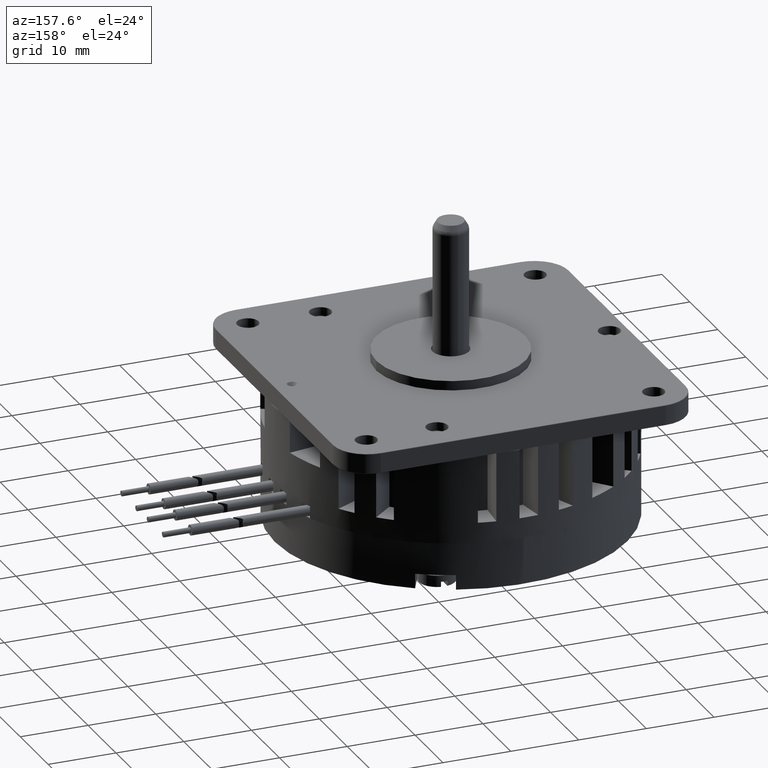
[diagram: clean part render]
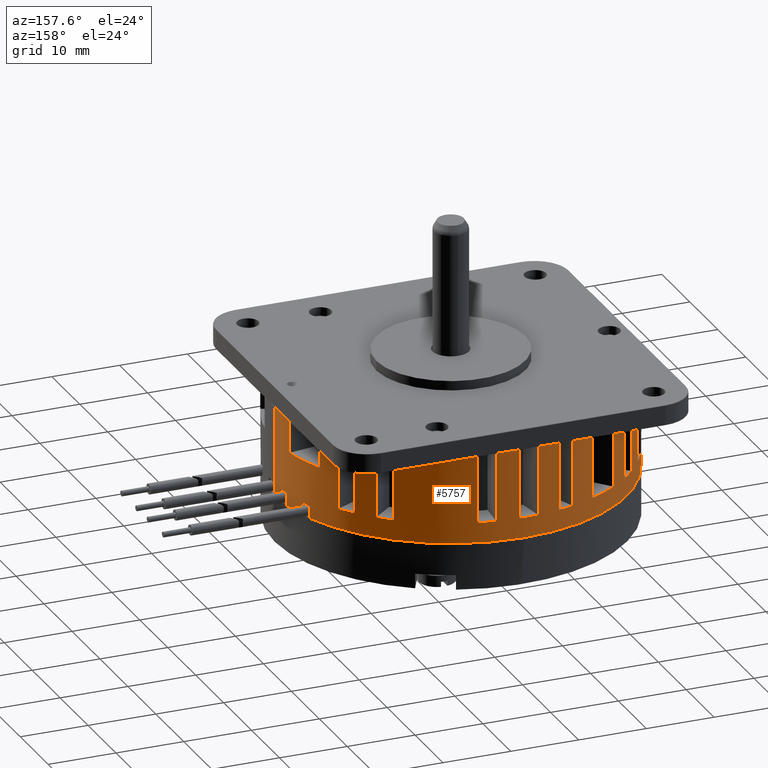
[diagram: same view with one face highlighted and labeled with its STEP entity id]
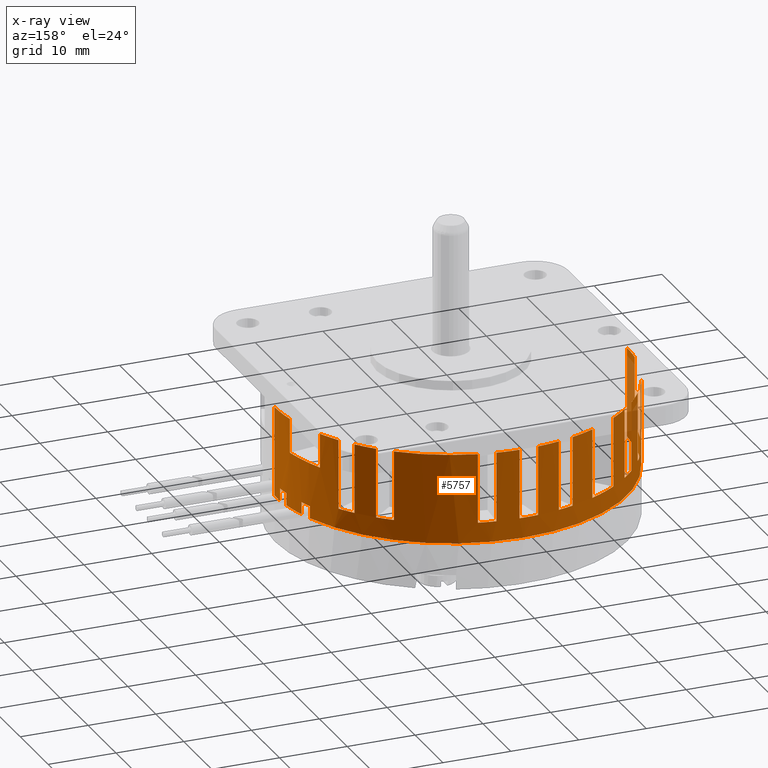
[diagram: x-ray of the same camera — body ghosted, the highlighted face saturated]
A machine part, auxiliary view. The second image highlights one B-rep face of the part: STEP entity #5757.
The next image is the same camera in x-ray: the body ghosted, the highlighted face saturated — about 3% of this face is hidden behind the body in this view.
In plain terms, the highlighted cylindrical surface (partial cylindrical patch) has radius 26 mm, axis along (0, 0, 1).
Its self-contained STEP definition (entity closure, byte-faithful):
#2304=CARTESIAN_POINT('',(5.E-2,4.405E0,0.E0));
#2305=DIRECTION('',(0.E0,-1.E0,0.E0));
#2306=DIRECTION('',(-1.E0,0.E0,0.E0));
#2307=AXIS2_PLACEMENT_3D('',#2304,#2305,#2306);
#2322=CARTESIAN_POINT('',(5.E-2,4.405E0,0.E0));
#2323=DIRECTION('',(0.E0,-1.E0,0.E0));
#2324=DIRECTION('',(-9.356814816891E-1,0.E0,-3.528458088515E-1));
#2325=AXIS2_PLACEMENT_3D('',#2322,#2323,#2324);
#2340=CARTESIAN_POINT('',(5.E-2,4.405E0,0.E0));
#2341=DIRECTION('',(0.E0,-1.E0,0.E0));
#2342=DIRECTION('',(-8.321334565652E-1,0.E0,-5.545754326193E-1));
#2343=AXIS2_PLACEMENT_3D('',#2340,#2341,#2342);
#2358=CARTESIAN_POINT('',(5.E-2,4.405E0,0.E0));
#2359=DIRECTION('',(0.E0,-1.E0,0.E0));
#2360=DIRECTION('',(-6.865613608901E-1,0.E0,-7.270718655901E-1));
#2361=AXIS2_PLACEMENT_3D('',#2358,#2359,#2360);
#2376=CARTESIAN_POINT('',(5.E-2,4.405E0,0.E0));
#2377=DIRECTION('',(0.E0,-1.E0,0.E0));
#2378=DIRECTION('',(-4.320625068323E-1,0.E0,-9.018436617229E-1));
#2379=AXIS2_PLACEMENT_3D('',#2376,#2377,#2378);
#2394=CARTESIAN_POINT('',(5.E-2,4.405E0,0.E0));
#2395=DIRECTION('',(0.E0,-1.E0,0.E0));
#2396=DIRECTION('',(-2.106171863816E-1,0.E0,-9.775686169271E-1));
#2397=AXIS2_PLACEMENT_3D('',#2394,#2395,#2396);
#2412=CARTESIAN_POINT('',(5.E-2,4.405E0,0.E0));
#2413=DIRECTION('',(0.E0,-1.E0,0.E0));
#2414=DIRECTION('',(2.236412153177E-2,0.E0,-9.997498917570E-1));
#2415=AXIS2_PLACEMENT_3D('',#2412,#2413,#2414);
#2430=CARTESIAN_POINT('',(5.E-2,4.405E0,0.E0));
#2431=DIRECTION('',(0.E0,-1.E0,0.E0));
#2432=DIRECTION('',(2.460091064024E-1,0.E0,-9.692675170288E-1));
#2433=AXIS2_PLACEMENT_3D('',#2430,#2431,#2432);
#2448=CARTESIAN_POINT('',(5.E-2,4.405E0,0.E0));
#2449=DIRECTION('',(0.E0,-1.E0,0.E0));
#2450=DIRECTION('',(7.125341504196E-1,0.E0,-7.016374309327E-1));
#2451=AXIS2_PLACEMENT_3D('',#2448,#2449,#2450);
#2466=CARTESIAN_POINT('',(5.E-2,4.405E0,0.E0));
#2467=DIRECTION('',(0.E0,-1.E0,0.E0));
#2468=DIRECTION('',(8.522886645596E-1,0.E0,-5.230717276466E-1));
#2469=AXIS2_PLACEMENT_3D('',#2466,#2467,#2468);
#2484=CARTESIAN_POINT('',(5.E-2,4.405E0,0.E0));
#2485=DIRECTION('',(0.E0,-1.E0,0.E0));
#2486=DIRECTION('',(9.848077530122E-1,0.E0,-1.736481776669E-1));
#2487=AXIS2_PLACEMENT_3D('',#2484,#2485,#2486);
#2538=DIRECTION('',(0.E0,1.E0,0.E0));
#2539=VECTOR('',#2538,1.323E1);
#2540=CARTESIAN_POINT('',(-2.595E1,-8.825E0,0.E0));
#2541=LINE('',#2540,#2539);
#2680=CARTESIAN_POINT('',(5.E-2,-8.825E0,0.E0));
#2681=DIRECTION('',(0.E0,1.E0,0.E0));
#2682=DIRECTION('',(9.395595436074E-1,0.E0,-3.423855487842E-1));
#2683=AXIS2_PLACEMENT_3D('',#2680,#2681,#2682);
#2757=CARTESIAN_POINT('',(5.E-2,-8.825E0,0.E0));
#2758=DIRECTION('',(0.E0,1.E0,0.E0));
#2759=DIRECTION('',(1.E0,0.E0,1.427051408794E-14));
#2760=AXIS2_PLACEMENT_3D('',#2757,#2758,#2759);
#2793=CARTESIAN_POINT('',(5.E-2,-8.825E0,0.E0));
#2794=DIRECTION('',(0.E0,1.E0,0.E0));
#2795=DIRECTION('',(9.902759381933E-1,0.E0,-1.391170954102E-1));
#2796=AXIS2_PLACEMENT_3D('',#2793,#2794,#2795);
#2940=DIRECTION('',(0.E0,-1.E0,0.E0));
#2941=VECTOR('',#2940,1.8E0);
#2942=CARTESIAN_POINT('',(2.598573328714E1,-7.025E0,-1.826947962748E0));
#2943=LINE('',#2942,#2941);
#2944=DIRECTION('',(0.E0,1.E0,0.E0));
#2945=VECTOR('',#2944,1.323E1);
#2946=CARTESIAN_POINT('',(2.605E1,-8.825E0,1.258005098807E-13));
#2947=LINE('',#2946,#2945);
#2948=DIRECTION('',(0.E0,-1.E0,0.E0));
#2949=VECTOR('',#2948,5.03E0);
#2950=CARTESIAN_POINT('',(2.565500157832E1,4.405E0,-4.514852619340E0));
#2951=LINE('',#2950,#2949);
#2952=DIRECTION('',(0.E0,1.E0,0.E0));
#2953=VECTOR('',#2952,5.03E0);
#2954=CARTESIAN_POINT('',(2.375367366561E1,-6.25E-1,-1.068343833952E1));
#2955=LINE('',#2954,#2953);
#2956=DIRECTION('',(0.E0,-1.E0,0.E0));
#2957=VECTOR('',#2956,1.023E1);
#2958=CARTESIAN_POINT('',(2.220950527855E1,4.405E0,-1.359986491881E1));
#2959=LINE('',#2958,#2957);
#2960=DIRECTION('',(0.E0,1.E0,0.E0));
#2961=VECTOR('',#2960,1.023E1);
#2962=CARTESIAN_POINT('',(2.073740314522E1,-5.825E0,-1.574901111522E1));
#2963=LINE('',#2962,#2961);
#2964=DIRECTION('',(0.E0,-1.E0,0.E0));
#2965=VECTOR('',#2964,1.023E1);
#2966=CARTESIAN_POINT('',(1.857588791091E1,4.405E0,-1.824257320425E1));
#2967=LINE('',#2966,#2965);
#2968=DIRECTION('',(0.E0,1.E0,0.E0));
#2969=VECTOR('',#2968,1.023E1);
#2970=CARTESIAN_POINT('',(1.667838758617E1,-5.825E0,-1.998741419704E1));
#2971=LINE('',#2970,#2969);
#2972=DIRECTION('',(0.E0,-1.E0,0.E0));
#2973=VECTOR('',#2972,1.023E1);
#2974=CARTESIAN_POINT('',(6.446236766462E0,4.405E0,-2.520095544275E1));
#2975=LINE('',#2974,#2973);
#2976=DIRECTION('',(0.E0,1.E0,0.E0));
#2977=VECTOR('',#2976,1.023E1);
#2978=CARTESIAN_POINT('',(3.919308043714E0,-5.825E0,-2.571047364913E1));
#2979=LINE('',#2978,#2977);
#2980=DIRECTION('',(0.E0,-1.E0,0.E0));
#2981=VECTOR('',#2980,1.023E1);
#2982=CARTESIAN_POINT('',(6.314671598260E-1,4.405E0,-2.599349718568E1));
#2983=LINE('',#2982,#2981);
#2984=DIRECTION('',(0.E0,1.E0,0.E0));
#2985=VECTOR('',#2984,1.023E1);
#2986=CARTESIAN_POINT('',(-2.162464959882E0,-5.825E0,-2.590569433158E1));
#2987=LINE('',#2986,#2985);
#2988=DIRECTION('',(0.E0,-1.E0,0.E0));
#2989=VECTOR('',#2988,1.023E1);
#2990=CARTESIAN_POINT('',(-5.426046845922E0,4.405E0,-2.541678404010E1));
#2991=LINE('',#2990,#2989);
#2992=DIRECTION('',(0.E0,1.E0,0.E0));
#2993=VECTOR('',#2992,1.023E1);
#2994=CARTESIAN_POINT('',(-7.705810542926E0,-5.825E0,-2.481627294382E1));
#2995=LINE('',#2994,#2993);
#2996=DIRECTION('',(0.E0,-1.E0,0.E0));
#2997=VECTOR('',#2996,1.023E1);
#2998=CARTESIAN_POINT('',(-1.118362517764E1,4.405E0,-2.344793520480E1));
#2999=LINE('',#2998,#2997);
#3000=DIRECTION('',(0.E0,1.E0,0.E0));
#3001=VECTOR('',#3000,1.023E1);
#3002=CARTESIAN_POINT('',(-1.526231281386E1,-5.825E0,-2.101268845937E1));
#3003=LINE('',#3002,#3001);
#3004=DIRECTION('',(0.E0,-1.E0,0.E0));
#3005=VECTOR('',#3004,1.023E1);
#3006=CARTESIAN_POINT('',(-1.780059538314E1,4.405E0,-1.890386850534E1));
#3007=LINE('',#3006,#3005);
#3008=DIRECTION('',(0.E0,1.E0,0.E0));
#3009=VECTOR('',#3008,1.023E1);
#3010=CARTESIAN_POINT('',(-1.958479195200E1,-5.825E0,-1.704332552648E1));
#3011=LINE('',#3010,#3009);
#3012=DIRECTION('',(0.E0,-1.E0,0.E0));
#3013=VECTOR('',#3012,1.023E1);
#3014=CARTESIAN_POINT('',(-2.158546987069E1,4.405E0,-1.441896124810E1));
#3015=LINE('',#3014,#3013);
#3016=DIRECTION('',(0.E0,1.E0,0.E0));
#3017=VECTOR('',#3016,1.023E1);
#3018=CARTESIAN_POINT('',(-2.291972114052E1,-5.825E0,-1.218162184304E1));
#3019=LINE('',#3018,#3017);
#3020=DIRECTION('',(0.E0,-1.E0,0.E0));
#3021=VECTOR('',#3020,1.023E1);
#3022=CARTESIAN_POINT('',(-2.427771852392E1,4.405E0,-9.173991030140E0));
#3023=LINE('',#3022,#3021);
#3024=DIRECTION('',(0.E0,1.E0,0.E0));
#3025=VECTOR('',#3024,1.023E1);
#3026=CARTESIAN_POINT('',(-2.574607528288E1,-5.825E0,-3.25E0));
#3027=LINE('',#3026,#3025);
#3028=DIRECTION('',(0.E0,1.E0,0.E0));
#3029=VECTOR('',#3028,1.8E0);
#3030=CARTESIAN_POINT('',(2.447854813379E1,-8.825E0,-8.902024268388E0));
#3031=LINE('',#3030,#3029);
#3032=DIRECTION('',(0.E0,-1.E0,0.E0));
#3033=VECTOR('',#3032,1.8E0);
#3034=CARTESIAN_POINT('',(2.503593099460E1,-7.025E0,-7.190497363405E0));
#3035=LINE('',#3034,#3033);
#3036=DIRECTION('',(0.E0,1.E0,0.E0));
#3037=VECTOR('',#3036,1.8E0);
#3038=CARTESIAN_POINT('',(2.579717439303E1,-8.825E0,-3.617044480664E0));
#3039=LINE('',#3038,#3037);
#3040=CARTESIAN_POINT('',(5.E-2,-7.025E0,0.E0));
#3041=DIRECTION('',(0.E0,1.E0,0.E0));
#3042=DIRECTION('',(9.975282033514E-1,0.E0,-7.026722933644E-2));
#3043=AXIS2_PLACEMENT_3D('',#3040,#3041,#3042);
#3097=CARTESIAN_POINT('',(5.E-2,-6.25E-1,0.E0));
#3098=DIRECTION('',(0.E0,-1.E0,0.E0));
#3099=DIRECTION('',(9.116797563696E-1,0.E0,-4.109014745969E-1));
#3100=AXIS2_PLACEMENT_3D('',#3097,#3098,#3099);
#3123=CARTESIAN_POINT('',(5.E-2,-5.825E0,0.E0));
#3124=DIRECTION('',(0.E0,-1.E0,0.E0));
#3125=DIRECTION('',(7.956693517391E-1,0.E0,-6.057311967392E-1));
#3126=AXIS2_PLACEMENT_3D('',#3123,#3124,#3125);
#3149=CARTESIAN_POINT('',(5.E-2,-5.825E0,0.E0));
#3150=DIRECTION('',(0.E0,-1.E0,0.E0));
#3151=DIRECTION('',(6.395533686988E-1,0.E0,-7.687466998862E-1));
#3152=AXIS2_PLACEMENT_3D('',#3149,#3150,#3151);
#3175=CARTESIAN_POINT('',(5.E-2,-5.825E0,0.E0));
#3176=DIRECTION('',(0.E0,-1.E0,0.E0));
#3177=DIRECTION('',(1.488195401428E-1,0.E0,-9.888643711206E-1));
#3178=AXIS2_PLACEMENT_3D('',#3175,#3176,#3177);
#3201=CARTESIAN_POINT('',(5.E-2,-5.825E0,0.E0));
#3202=DIRECTION('',(0.E0,-1.E0,0.E0));
#3203=DIRECTION('',(-8.509480614929E-2,0.E0,-9.963728589070E-1));
#3204=AXIS2_PLACEMENT_3D('',#3201,#3202,#3203);
#3227=CARTESIAN_POINT('',(5.E-2,-5.825E0,0.E0));
#3228=DIRECTION('',(0.E0,-1.E0,0.E0));
#3229=DIRECTION('',(-2.983004054971E-1,0.E0,-9.544720363008E-1));
#3230=AXIS2_PLACEMENT_3D('',#3227,#3228,#3229);
#3253=CARTESIAN_POINT('',(5.E-2,-5.825E0,0.E0));
#3254=DIRECTION('',(0.E0,-1.E0,0.E0));
#3255=DIRECTION('',(-5.889351082256E-1,0.E0,-8.081803253602E-1));
#3256=AXIS2_PLACEMENT_3D('',#3253,#3254,#3255);
#3279=CARTESIAN_POINT('',(5.E-2,-5.825E0,0.E0));
#3280=DIRECTION('',(0.E0,-1.E0,0.E0));
#3281=DIRECTION('',(-7.551843058460E-1,0.E0,-6.555125202495E-1));
#3282=AXIS2_PLACEMENT_3D('',#3279,#3280,#3281);
#3305=CARTESIAN_POINT('',(5.E-2,-5.825E0,0.E0));
#3306=DIRECTION('',(0.E0,-1.E0,0.E0));
#3307=DIRECTION('',(-8.834508130969E-1,0.E0,-4.685239170399E-1));
#3308=AXIS2_PLACEMENT_3D('',#3305,#3306,#3307);
#3335=CARTESIAN_POINT('',(5.E-2,-5.825E0,0.E0));
#3336=DIRECTION('',(0.E0,-1.E0,0.E0));
#3337=DIRECTION('',(-9.921567416492E-1,0.E0,-1.25E-1));
#3338=AXIS2_PLACEMENT_3D('',#3335,#3336,#3337);
#3400=CARTESIAN_POINT('',(5.E-2,-7.025E0,0.E0));
#3401=DIRECTION('',(0.E0,1.E0,0.E0));
#3402=DIRECTION('',(9.609973459461E-1,0.E0,-2.765575909002E-1));
#3403=AXIS2_PLACEMENT_3D('',#3400,#3401,#3402);
#4430=CARTESIAN_POINT('',(-2.595E1,4.405E0,0.E0));
#4431=VERTEX_POINT('',#4430);
#4432=CARTESIAN_POINT('',(-2.574607528288E1,4.405E0,-3.25E0));
#4433=VERTEX_POINT('',#4432);
#4438=CARTESIAN_POINT('',(-2.427771852392E1,4.405E0,-9.173991030140E0));
#4439=VERTEX_POINT('',#4438);
#4440=CARTESIAN_POINT('',(-2.291972114052E1,4.405E0,-1.218162184304E1));
#4441=VERTEX_POINT('',#4440);
#4446=CARTESIAN_POINT('',(-2.158546987069E1,4.405E0,-1.441896124810E1));
#4447=VERTEX_POINT('',#4446);
#4448=CARTESIAN_POINT('',(-1.958479195200E1,4.405E0,-1.704332552649E1));
#4449=VERTEX_POINT('',#4448);
#4454=CARTESIAN_POINT('',(-1.780059538314E1,4.405E0,-1.890386850534E1));
#4455=VERTEX_POINT('',#4454);
#4456=CARTESIAN_POINT('',(-1.526231281387E1,4.405E0,-2.101268845936E1));
#4457=VERTEX_POINT('',#4456);
#4462=CARTESIAN_POINT('',(-1.118362517764E1,4.405E0,-2.344793520480E1));
#4463=VERTEX_POINT('',#4462);
#4464=CARTESIAN_POINT('',(-7.705810542926E0,4.405E0,-2.481627294382E1));
#4465=VERTEX_POINT('',#4464);
#4470=CARTESIAN_POINT('',(-5.426046845922E0,4.405E0,-2.541678404010E1));
#4471=VERTEX_POINT('',#4470);
#4472=CARTESIAN_POINT('',(-2.162464959882E0,4.405E0,-2.590569433158E1));
#4473=VERTEX_POINT('',#4472);
#4478=CARTESIAN_POINT('',(6.314671598260E-1,4.405E0,-2.599349718568E1));
#4479=VERTEX_POINT('',#4478);
#4480=CARTESIAN_POINT('',(3.919308043714E0,4.405E0,-2.571047364913E1));
#4481=VERTEX_POINT('',#4480);
#4486=CARTESIAN_POINT('',(6.446236766462E0,4.405E0,-2.520095544275E1));
#4487=VERTEX_POINT('',#4486);
#4488=CARTESIAN_POINT('',(1.667838758617E1,4.405E0,-1.998741419704E1));
#4489=VERTEX_POINT('',#4488);
#4494=CARTESIAN_POINT('',(1.857588791091E1,4.405E0,-1.824257320425E1));
#4495=VERTEX_POINT('',#4494);
#4496=CARTESIAN_POINT('',(2.073740314522E1,4.405E0,-1.574901111522E1));
#4497=VERTEX_POINT('',#4496);
#4502=CARTESIAN_POINT('',(2.220950527855E1,4.405E0,-1.359986491881E1));
#4503=VERTEX_POINT('',#4502);
#4504=CARTESIAN_POINT('',(2.375367366561E1,4.405E0,-1.068343833952E1));
#4505=VERTEX_POINT('',#4504);
#4510=CARTESIAN_POINT('',(2.565500157832E1,4.405E0,-4.514852619340E0));
#4511=VERTEX_POINT('',#4510);
#4512=CARTESIAN_POINT('',(2.605E1,4.405E0,0.E0));
#4513=VERTEX_POINT('',#4512);
#4536=CARTESIAN_POINT('',(-2.595E1,-8.825E0,0.E0));
#4537=VERTEX_POINT('',#4536);
#4576=CARTESIAN_POINT('',(2.605E1,-8.825E0,1.258005098807E-13));
#4577=VERTEX_POINT('',#4576);
#4594=CARTESIAN_POINT('',(2.598573328714E1,-7.025E0,-1.826947962747E0));
#4595=CARTESIAN_POINT('',(2.579717439303E1,-7.025E0,-3.617044480664E0));
#4596=VERTEX_POINT('',#4594);
#4597=VERTEX_POINT('',#4595);
#4604=CARTESIAN_POINT('',(2.503593099460E1,-7.025E0,-7.190497363405E0));
#4605=CARTESIAN_POINT('',(2.447854813379E1,-7.025E0,-8.902024268388E0));
#4606=VERTEX_POINT('',#4604);
#4607=VERTEX_POINT('',#4605);
#4632=CARTESIAN_POINT('',(2.447854813379E1,-8.825E0,-8.902024268388E0));
#4633=VERTEX_POINT('',#4632);
#4678=CARTESIAN_POINT('',(2.598573328714E1,-8.825E0,-1.826947962747E0));
#4679=VERTEX_POINT('',#4678);
#4688=CARTESIAN_POINT('',(2.579717439303E1,-8.825E0,-3.617044480664E0));
#4689=VERTEX_POINT('',#4688);
#4690=CARTESIAN_POINT('',(2.503593099460E1,-8.825E0,-7.190497363405E0));
#4691=VERTEX_POINT('',#4690);
#4856=CARTESIAN_POINT('',(2.565500157832E1,-6.25E-1,-4.514852619340E0));
#4857=VERTEX_POINT('',#4856);
#4858=CARTESIAN_POINT('',(2.375367366561E1,-6.25E-1,-1.068343833952E1));
#4859=VERTEX_POINT('',#4858);
#4860=CARTESIAN_POINT('',(2.220950527855E1,-5.825E0,-1.359986491881E1));
#4861=VERTEX_POINT('',#4860);
#4862=CARTESIAN_POINT('',(2.073740314522E1,-5.825E0,-1.574901111522E1));
#4863=VERTEX_POINT('',#4862);
#4864=CARTESIAN_POINT('',(1.857588791091E1,-5.825E0,-1.824257320425E1));
#4865=VERTEX_POINT('',#4864);
#4866=CARTESIAN_POINT('',(1.667838758617E1,-5.825E0,-1.998741419704E1));
#4867=VERTEX_POINT('',#4866);
#4868=CARTESIAN_POINT('',(6.446236766462E0,-5.825E0,-2.520095544275E1));
#4869=VERTEX_POINT('',#4868);
#4870=CARTESIAN_POINT('',(3.919308043714E0,-5.825E0,-2.571047364913E1));
#4871=VERTEX_POINT('',#4870);
#4872=CARTESIAN_POINT('',(6.314671598260E-1,-5.825E0,-2.599349718568E1));
#4873=VERTEX_POINT('',#4872);
#4874=CARTESIAN_POINT('',(-2.162464959882E0,-5.825E0,-2.590569433158E1));
#4875=VERTEX_POINT('',#4874);
#4876=CARTESIAN_POINT('',(-5.426046845922E0,-5.825E0,-2.541678404010E1));
#4877=VERTEX_POINT('',#4876);
#4878=CARTESIAN_POINT('',(-7.705810542926E0,-5.825E0,-2.481627294382E1));
#4879=VERTEX_POINT('',#4878);
#4880=CARTESIAN_POINT('',(-1.118362517764E1,-5.825E0,-2.344793520480E1));
#4881=VERTEX_POINT('',#4880);
#4882=CARTESIAN_POINT('',(-1.526231281387E1,-5.825E0,-2.101268845936E1));
#4883=VERTEX_POINT('',#4882);
#4884=CARTESIAN_POINT('',(-1.780059538314E1,-5.825E0,-1.890386850534E1));
#4885=VERTEX_POINT('',#4884);
#4886=CARTESIAN_POINT('',(-1.958479195200E1,-5.825E0,-1.704332552649E1));
#4887=VERTEX_POINT('',#4886);
#4888=CARTESIAN_POINT('',(-2.158546987069E1,-5.825E0,-1.441896124810E1));
#4889=VERTEX_POINT('',#4888);
#4890=CARTESIAN_POINT('',(-2.291972114052E1,-5.825E0,-1.218162184304E1));
#4891=VERTEX_POINT('',#4890);
#4892=CARTESIAN_POINT('',(-2.427771852392E1,-5.825E0,-9.173991030140E0));
#4893=VERTEX_POINT('',#4892);
#4894=CARTESIAN_POINT('',(-2.574607528288E1,-5.825E0,-3.25E0));
#4895=VERTEX_POINT('',#4894);
#5663=CARTESIAN_POINT('',(5.E-2,-9.7075E0,0.E0));
#5664=DIRECTION('',(0.E0,1.E0,0.E0));
#5665=DIRECTION('',(1.E0,0.E0,0.E0));
#5666=AXIS2_PLACEMENT_3D('',#5663,#5664,#5665);
#5667=CYLINDRICAL_SURFACE('',#5666,2.6E1);
#5669=ORIENTED_EDGE('',*,*,#5668,.F.);
#5670=ORIENTED_EDGE('',*,*,#5655,.T.);
#5671=ORIENTED_EDGE('',*,*,#5487,.F.);
#5672=ORIENTED_EDGE('',*,*,#5394,.T.);
#5673=ORIENTED_EDGE('',*,*,#5267,.F.);
#5675=ORIENTED_EDGE('',*,*,#5674,.T.);
#5677=ORIENTED_EDGE('',*,*,#5676,.F.);
#5679=ORIENTED_EDGE('',*,*,#5678,.T.);
#5680=ORIENTED_EDGE('',*,*,#5259,.F.);
#5682=ORIENTED_EDGE('',*,*,#5681,.T.);
#5684=ORIENTED_EDGE('',*,*,#5683,.F.);
#5686=ORIENTED_EDGE('',*,*,#5685,.T.);
#5687=ORIENTED_EDGE('',*,*,#5251,.F.);
#5689=ORIENTED_EDGE('',*,*,#5688,.T.);
#5691=ORIENTED_EDGE('',*,*,#5690,.F.);
#5693=ORIENTED_EDGE('',*,*,#5692,.T.);
#5694=ORIENTED_EDGE('',*,*,#5243,.F.);
#5696=ORIENTED_EDGE('',*,*,#5695,.T.);
#5698=ORIENTED_EDGE('',*,*,#5697,.F.);
#5700=ORIENTED_EDGE('',*,*,#5699,.T.);
#5701=ORIENTED_EDGE('',*,*,#5235,.F.);
#5703=ORIENTED_EDGE('',*,*,#5702,.T.);
#5705=ORIENTED_EDGE('',*,*,#5704,.F.);
#5707=ORIENTED_EDGE('',*,*,#5706,.T.);
#5708=ORIENTED_EDGE('',*,*,#5227,.F.);
#5710=ORIENTED_EDGE('',*,*,#5709,.T.);
#5712=ORIENTED_EDGE('',*,*,#5711,.F.);
#5714=ORIENTED_EDGE('',*,*,#5713,.T.);
#5715=ORIENTED_EDGE('',*,*,#5219,.F.);
#5717=ORIENTED_EDGE('',*,*,#5716,.T.);
#5719=ORIENTED_EDGE('',*,*,#5718,.F.);
#5721=ORIENTED_EDGE('',*,*,#5720,.T.);
#5722=ORIENTED_EDGE('',*,*,#5211,.F.);
#5724=ORIENTED_EDGE('',*,*,#5723,.T.);
#5726=ORIENTED_EDGE('',*,*,#5725,.F.);
#5728=ORIENTED_EDGE('',*,*,#5727,.T.);
#5729=ORIENTED_EDGE('',*,*,#5203,.F.);
#5731=ORIENTED_EDGE('',*,*,#5730,.T.);
#5733=ORIENTED_EDGE('',*,*,#5732,.F.);
#5735=ORIENTED_EDGE('',*,*,#5734,.T.);
#5736=ORIENTED_EDGE('',*,*,#5195,.F.);
#5738=ORIENTED_EDGE('',*,*,#5737,.T.);
#5740=ORIENTED_EDGE('',*,*,#5739,.F.);
#5742=ORIENTED_EDGE('',*,*,#5741,.T.);
#5743=ORIENTED_EDGE('',*,*,#5187,.F.);
#5744=ORIENTED_EDGE('',*,*,#5322,.F.);
#5745=ORIENTED_EDGE('',*,*,#5455,.F.);
#5747=ORIENTED_EDGE('',*,*,#5746,.T.);
#5749=ORIENTED_EDGE('',*,*,#5748,.F.);
#5751=ORIENTED_EDGE('',*,*,#5750,.T.);
#5752=ORIENTED_EDGE('',*,*,#5503,.F.);
#5754=ORIENTED_EDGE('',*,*,#5753,.T.);
#5755=EDGE_LOOP('',(#5669,#5670,#5671,#5672,#5673,#5675,#5677,#5679,#5680,#5682,
#5684,#5686,#5687,#5689,#5691,#5693,#5694,#5696,#5698,#5700,#5701,#5703,#5705,
#5707,#5708,#5710,#5712,#5714,#5715,#5717,#5719,#5721,#5722,#5724,#5726,#5728,
#5729,#5731,#5733,#5735,#5736,#5738,#5740,#5742,#5743,#5744,#5745,#5747,#5749,
#5751,#5752,#5754));
#5756=FACE_OUTER_BOUND('',#5755,.F.);
#5757=ADVANCED_FACE('',(#5756),#5667,.T.);
#2308=CIRCLE('',#2307,2.6E1);
#2326=CIRCLE('',#2325,2.6E1);
#2344=CIRCLE('',#2343,2.6E1);
#2362=CIRCLE('',#2361,2.6E1);
#2380=CIRCLE('',#2379,2.6E1);
#2398=CIRCLE('',#2397,2.6E1);
#2416=CIRCLE('',#2415,2.6E1);
#2434=CIRCLE('',#2433,2.6E1);
#2452=CIRCLE('',#2451,2.6E1);
#2470=CIRCLE('',#2469,2.6E1);
#2488=CIRCLE('',#2487,2.6E1);
#2684=CIRCLE('',#2683,2.6E1);
#2761=CIRCLE('',#2760,2.6E1);
#2797=CIRCLE('',#2796,2.6E1);
#3044=CIRCLE('',#3043,2.6E1);
#3101=CIRCLE('',#3100,2.6E1);
#3127=CIRCLE('',#3126,2.6E1);
#3153=CIRCLE('',#3152,2.6E1);
#3179=CIRCLE('',#3178,2.6E1);
#3205=CIRCLE('',#3204,2.6E1);
#3231=CIRCLE('',#3230,2.6E1);
#3257=CIRCLE('',#3256,2.6E1);
#3283=CIRCLE('',#3282,2.6E1);
#3309=CIRCLE('',#3308,2.6E1);
#3339=CIRCLE('',#3338,2.6E1);
#3404=CIRCLE('',#3403,2.6E1);
#5187=EDGE_CURVE('',#4431,#4433,#2308,.T.);
#5195=EDGE_CURVE('',#4439,#4441,#2326,.T.);
#5203=EDGE_CURVE('',#4447,#4449,#2344,.T.);
#5211=EDGE_CURVE('',#4455,#4457,#2362,.T.);
#5219=EDGE_CURVE('',#4463,#4465,#2380,.T.);
#5227=EDGE_CURVE('',#4471,#4473,#2398,.T.);
#5235=EDGE_CURVE('',#4479,#4481,#2416,.T.);
#5243=EDGE_CURVE('',#4487,#4489,#2434,.T.);
#5251=EDGE_CURVE('',#4495,#4497,#2452,.T.);
#5259=EDGE_CURVE('',#4503,#4505,#2470,.T.);
#5267=EDGE_CURVE('',#4511,#4513,#2488,.T.);
#5322=EDGE_CURVE('',#4537,#4431,#2541,.T.);
#5394=EDGE_CURVE('',#4577,#4513,#2947,.T.);
#5455=EDGE_CURVE('',#4633,#4537,#2684,.T.);
#5487=EDGE_CURVE('',#4577,#4679,#2761,.T.);
#5503=EDGE_CURVE('',#4689,#4691,#2797,.T.);
#5655=EDGE_CURVE('',#4596,#4679,#2943,.T.);
#5668=EDGE_CURVE('',#4596,#4597,#3044,.T.);
#5674=EDGE_CURVE('',#4511,#4857,#2951,.T.);
#5676=EDGE_CURVE('',#4859,#4857,#3101,.T.);
#5678=EDGE_CURVE('',#4859,#4505,#2955,.T.);
#5681=EDGE_CURVE('',#4503,#4861,#2959,.T.);
#5683=EDGE_CURVE('',#4863,#4861,#3127,.T.);
#5685=EDGE_CURVE('',#4863,#4497,#2963,.T.);
#5688=EDGE_CURVE('',#4495,#4865,#2967,.T.);
#5690=EDGE_CURVE('',#4867,#4865,#3153,.T.);
#5692=EDGE_CURVE('',#4867,#4489,#2971,.T.);
#5695=EDGE_CURVE('',#4487,#4869,#2975,.T.);
#5697=EDGE_CURVE('',#4871,#4869,#3179,.T.);
#5699=EDGE_CURVE('',#4871,#4481,#2979,.T.);
#5702=EDGE_CURVE('',#4479,#4873,#2983,.T.);
#5704=EDGE_CURVE('',#4875,#4873,#3205,.T.);
#5706=EDGE_CURVE('',#4875,#4473,#2987,.T.);
#5709=EDGE_CURVE('',#4471,#4877,#2991,.T.);
#5711=EDGE_CURVE('',#4879,#4877,#3231,.T.);
#5713=EDGE_CURVE('',#4879,#4465,#2995,.T.);
#5716=EDGE_CURVE('',#4463,#4881,#2999,.T.);
#5718=EDGE_CURVE('',#4883,#4881,#3257,.T.);
#5720=EDGE_CURVE('',#4883,#4457,#3003,.T.);
#5723=EDGE_CURVE('',#4455,#4885,#3007,.T.);
#5725=EDGE_CURVE('',#4887,#4885,#3283,.T.);
#5727=EDGE_CURVE('',#4887,#4449,#3011,.T.);
#5730=EDGE_CURVE('',#4447,#4889,#3015,.T.);
#5732=EDGE_CURVE('',#4891,#4889,#3309,.T.);
#5734=EDGE_CURVE('',#4891,#4441,#3019,.T.);
#5737=EDGE_CURVE('',#4439,#4893,#3023,.T.);
#5739=EDGE_CURVE('',#4895,#4893,#3339,.T.);
#5741=EDGE_CURVE('',#4895,#4433,#3027,.T.);
#5746=EDGE_CURVE('',#4633,#4607,#3031,.T.);
#5748=EDGE_CURVE('',#4606,#4607,#3404,.T.);
#5750=EDGE_CURVE('',#4606,#4691,#3035,.T.);
#5753=EDGE_CURVE('',#4689,#4597,#3039,.T.);